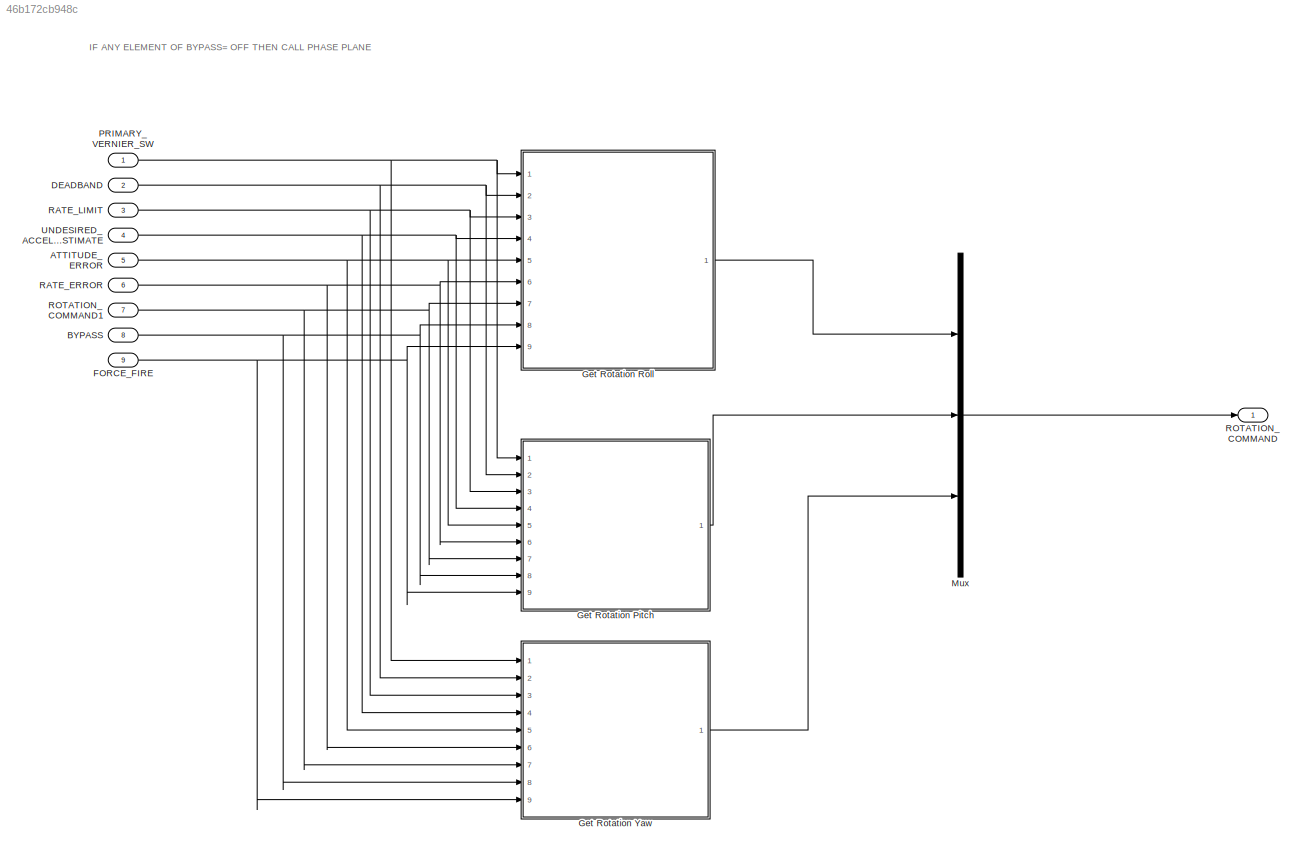
MODEL slx_46b172cb948c
KIND model
CONFIG AbsTol = auto
CONFIG EnableMultiTasking = off
CONFIG FixedStep = 0.08
CONFIG MaxStep = auto
CONFIG MinStep = auto
CONFIG RelTol = 1e-3
CONFIG SampleTimeConstraint = Unconstrained
CONFIG Solver = FixedStepAuto
CONFIG SolverName = FixedStepAuto
CONFIG StartTime = 0.0
CONFIG StopTime = 10.0
BLOCK [Inport] ATTITUDE_ERROR
  IconDisplay = Port number
  Port = 5
BLOCK [Inport] BYPASS
  IconDisplay = Port number
  OutDataTypeStr = boolean
  Port = 8
  PortDimensions = 3
BLOCK [Inport] DEADBAND
  IconDisplay = Port number
  Port = 2
BLOCK [Inport] FORCE_FIRE
  IconDisplay = Port number
  OutDataTypeStr = boolean
  Port = 9
  PortDimensions = 3
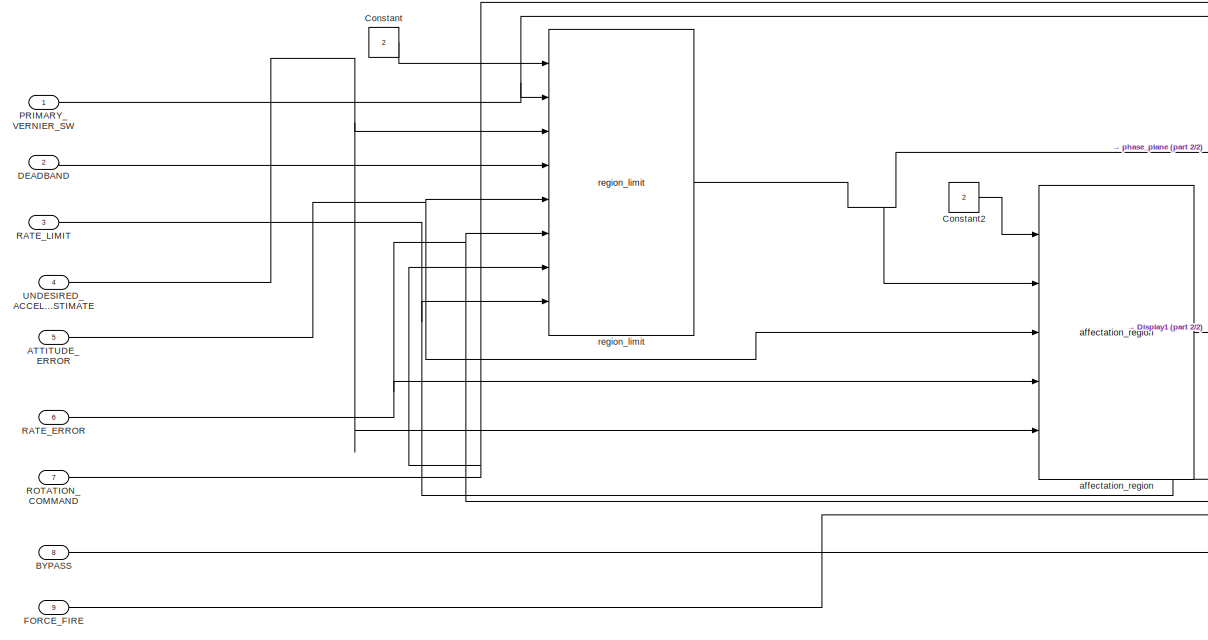
[diagram: Get Rotation Pitch - part 1/2, left side, full height]
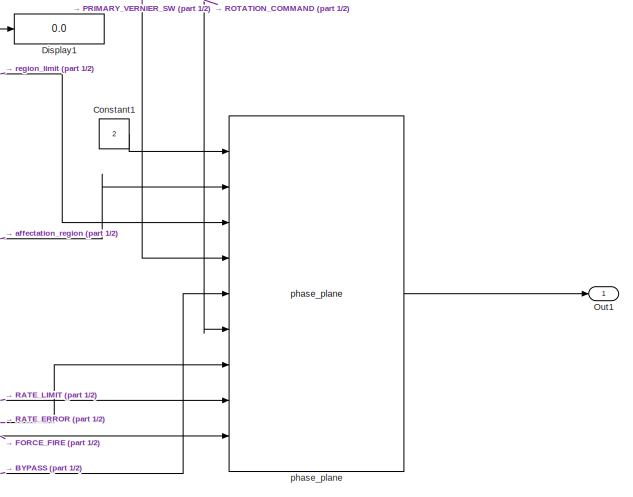
[diagram: Get Rotation Pitch - part 2/2, middle right region]
BLOCK [SubSystem] Get Rotation Pitch
  Ports = [9, 1]
  RequestExecContextInheritance = off
  Variant = off
BLOCK [Inport] Get Rotation Pitch/ATTITUDE_ERROR
  IconDisplay = Port number
  Port = 5
BLOCK [Inport] Get Rotation Pitch/BYPASS
  IconDisplay = Port number
  Port = 8
BLOCK [Constant] Get Rotation Pitch/Constant
  Value = 2
BLOCK [Constant] Get Rotation Pitch/Constant1
  Value = 2
BLOCK [Constant] Get Rotation Pitch/Constant2
  Value = 2
BLOCK [Inport] Get Rotation Pitch/DEADBAND
  IconDisplay = Port number
  Port = 2
BLOCK [Display] Get Rotation Pitch/Display1
  Decimation = 1
  Ports = [1]
BLOCK [Inport] Get Rotation Pitch/FORCE_FIRE
  IconDisplay = Port number
  Port = 9
BLOCK [Outport] Get Rotation Pitch/Out1
  IconDisplay = Port number
BLOCK [Inport] Get Rotation Pitch/PRIMARY_VERNIER_SW
  IconDisplay = Port number
BLOCK [Inport] Get Rotation Pitch/RATE_ERROR
  IconDisplay = Port number
  Port = 6
BLOCK [Inport] Get Rotation Pitch/RATE_LIMIT
  IconDisplay = Port number
  Port = 3
BLOCK [Inport] Get Rotation Pitch/ROTATION_COMMAND
  IconDisplay = Port number
  Port = 7
BLOCK [Inport] Get Rotation Pitch/UNDESIRED_ACCELERATION_ESTIMATE
  IconDisplay = Port number
  Port = 4
BLOCK [Reference] Get Rotation Pitch/affectation_region  REF=MATLAB_Function_lib/affectation_region
  Ports = [5, 1]
  SourceBlock = MATLAB_Function_lib/affectation_region
  SourceType = SubSystem
BLOCK [Reference] Get Rotation Pitch/phase_plane  REF=MATLAB_Function_lib/phase_plane
  Ports = [9, 1]
  SourceBlock = MATLAB_Function_lib/phase_plane
  SourceType = SubSystem
BLOCK [Reference] Get Rotation Pitch/region_limit  REF=MATLAB_Function_lib/region_limit
  Ports = [8, 1]
  SourceBlock = MATLAB_Function_lib/region_limit
  SourceType = SubSystem
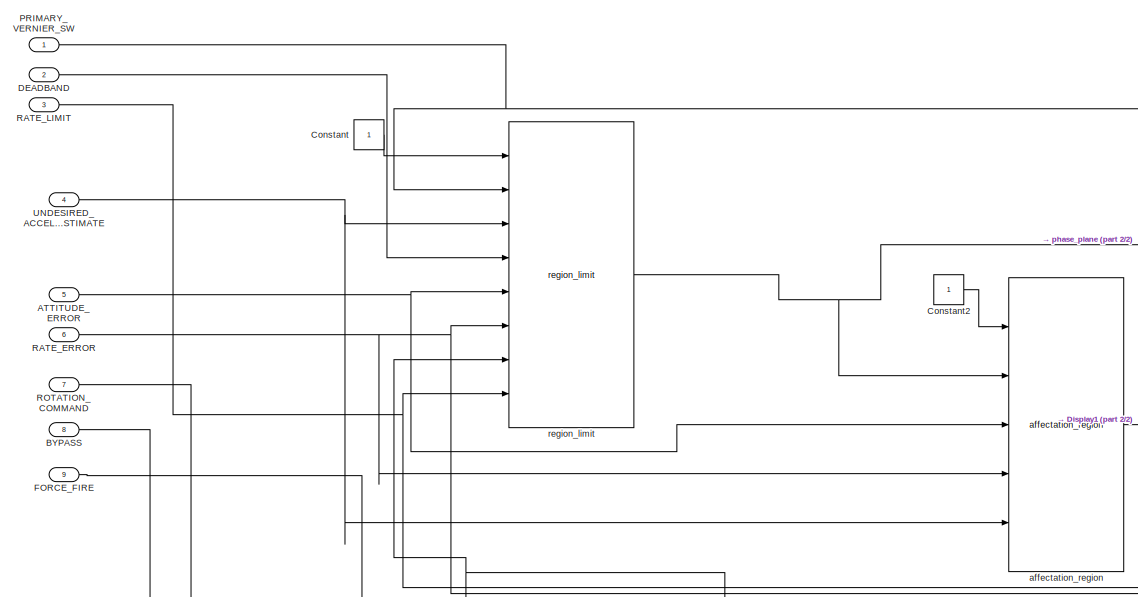
[diagram: Get Rotation Roll - part 1/2, middle left region]
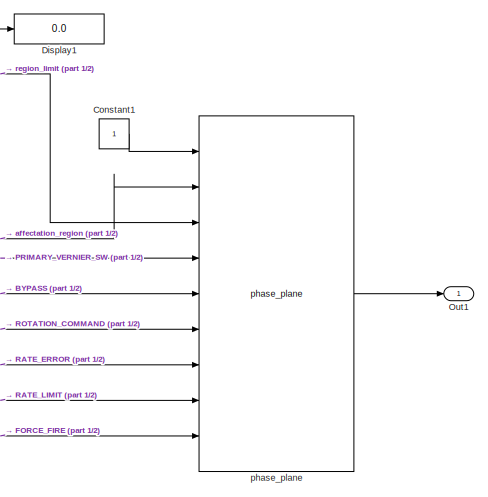
[diagram: Get Rotation Roll - part 2/2, middle right region]
BLOCK [SubSystem] Get Rotation Roll
  Ports = [9, 1]
  RequestExecContextInheritance = off
  Variant = off
BLOCK [Inport] Get Rotation Roll/ATTITUDE_ERROR
  IconDisplay = Port number
  Port = 5
BLOCK [Inport] Get Rotation Roll/BYPASS
  IconDisplay = Port number
  Port = 8
BLOCK [Constant] Get Rotation Roll/Constant
BLOCK [Constant] Get Rotation Roll/Constant1
BLOCK [Constant] Get Rotation Roll/Constant2
BLOCK [Inport] Get Rotation Roll/DEADBAND
  IconDisplay = Port number
  Port = 2
BLOCK [Display] Get Rotation Roll/Display1
  Decimation = 1
  Ports = [1]
BLOCK [Inport] Get Rotation Roll/FORCE_FIRE
  IconDisplay = Port number
  Port = 9
BLOCK [Outport] Get Rotation Roll/Out1
  IconDisplay = Port number
BLOCK [Inport] Get Rotation Roll/PRIMARY_VERNIER_SW
  IconDisplay = Port number
BLOCK [Inport] Get Rotation Roll/RATE_ERROR
  IconDisplay = Port number
  Port = 6
BLOCK [Inport] Get Rotation Roll/RATE_LIMIT
  IconDisplay = Port number
  Port = 3
BLOCK [Inport] Get Rotation Roll/ROTATION_COMMAND
  IconDisplay = Port number
  Port = 7
BLOCK [Inport] Get Rotation Roll/UNDESIRED_ACCELERATION_ESTIMATE
  IconDisplay = Port number
  Port = 4
BLOCK [Reference] Get Rotation Roll/affectation_region  REF=MATLAB_Function_lib/affectation_region
  Ports = [5, 1]
  SourceBlock = MATLAB_Function_lib/affectation_region
  SourceType = SubSystem
BLOCK [Reference] Get Rotation Roll/phase_plane  REF=MATLAB_Function_lib/phase_plane
  Ports = [9, 1]
  SourceBlock = MATLAB_Function_lib/phase_plane
  SourceType = SubSystem
BLOCK [Reference] Get Rotation Roll/region_limit  REF=MATLAB_Function_lib/region_limit
  Ports = [8, 1]
  SourceBlock = MATLAB_Function_lib/region_limit
  SourceType = SubSystem
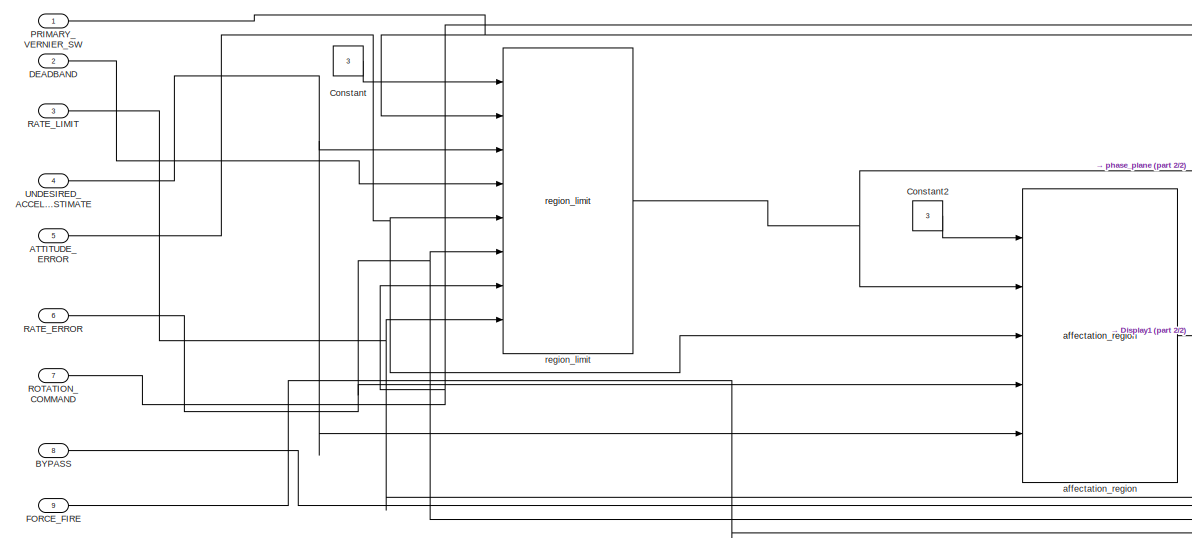
[diagram: Get Rotation Yaw - part 1/2, left side, full height]
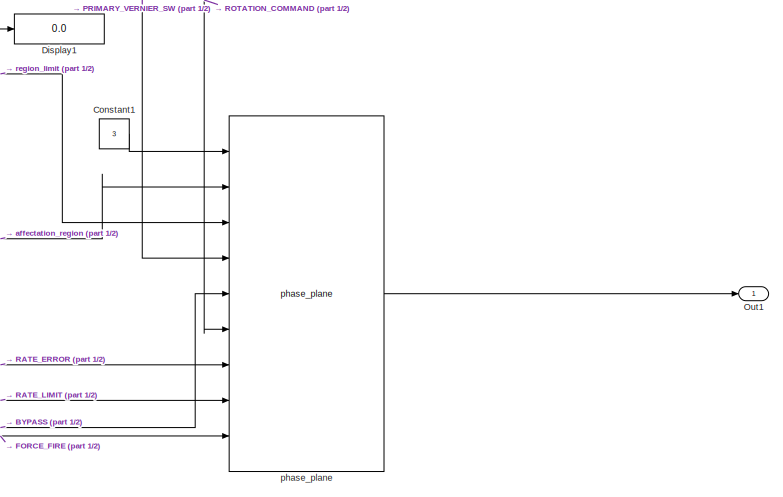
[diagram: Get Rotation Yaw - part 2/2, right side, full height]
BLOCK [SubSystem] Get Rotation Yaw
  Ports = [9, 1]
  RequestExecContextInheritance = off
  Variant = off
BLOCK [Inport] Get Rotation Yaw/ATTITUDE_ERROR
  IconDisplay = Port number
  Port = 5
BLOCK [Inport] Get Rotation Yaw/BYPASS
  IconDisplay = Port number
  Port = 8
BLOCK [Constant] Get Rotation Yaw/Constant
  Value = 3
BLOCK [Constant] Get Rotation Yaw/Constant1
  Value = 3
BLOCK [Constant] Get Rotation Yaw/Constant2
  Value = 3
BLOCK [Inport] Get Rotation Yaw/DEADBAND
  IconDisplay = Port number
  Port = 2
BLOCK [Display] Get Rotation Yaw/Display1
  Decimation = 1
  Ports = [1]
BLOCK [Inport] Get Rotation Yaw/FORCE_FIRE
  IconDisplay = Port number
  Port = 9
BLOCK [Outport] Get Rotation Yaw/Out1
  IconDisplay = Port number
BLOCK [Inport] Get Rotation Yaw/PRIMARY_VERNIER_SW
  IconDisplay = Port number
BLOCK [Inport] Get Rotation Yaw/RATE_ERROR
  IconDisplay = Port number
  Port = 6
BLOCK [Inport] Get Rotation Yaw/RATE_LIMIT
  IconDisplay = Port number
  Port = 3
BLOCK [Inport] Get Rotation Yaw/ROTATION_COMMAND
  IconDisplay = Port number
  Port = 7
BLOCK [Inport] Get Rotation Yaw/UNDESIRED_ACCELERATION_ESTIMATE
  IconDisplay = Port number
  Port = 4
BLOCK [Reference] Get Rotation Yaw/affectation_region  REF=MATLAB_Function_lib/affectation_region
  Ports = [5, 1]
  SourceBlock = MATLAB_Function_lib/affectation_region
  SourceType = SubSystem
BLOCK [Reference] Get Rotation Yaw/phase_plane  REF=MATLAB_Function_lib/phase_plane
  Ports = [9, 1]
  SourceBlock = MATLAB_Function_lib/phase_plane
  SourceType = SubSystem
BLOCK [Reference] Get Rotation Yaw/region_limit  REF=MATLAB_Function_lib/region_limit
  Ports = [8, 1]
  SourceBlock = MATLAB_Function_lib/region_limit
  SourceType = SubSystem
BLOCK [Mux] Mux
  DisplayOption = bar
  Inputs = 3
  Ports = [3, 1]
BLOCK [Inport] PRIMARY_VERNIER_SW
  IconDisplay = Port number
  OutDataTypeStr = boolean
BLOCK [Inport] RATE_ERROR
  IconDisplay = Port number
  Port = 6
BLOCK [Inport] RATE_LIMIT
  IconDisplay = Port number
  Port = 3
BLOCK [Outport] ROTATION_COMMAND
  IconDisplay = Port number
BLOCK [Inport] ROTATION_COMMAND1
  IconDisplay = Port number
  Port = 7
BLOCK [Inport] UNDESIRED_ACCELERATION_ESTIMATE
  IconDisplay = Port number
  Port = 4
ANNOTATION (root): IF ANY ELEMENT OF BYPASS= OFF THEN CALL PHASE PLANE
NET ATTITUDE_ERROR:1 -> Get Rotation Pitch:5, Get Rotation Roll:5, Get Rotation Yaw:5
NET BYPASS:1 -> Get Rotation Pitch:8, Get Rotation Roll:8, Get Rotation Yaw:8
NET DEADBAND:1 -> Get Rotation Pitch:2, Get Rotation Roll:2, Get Rotation Yaw:2
NET FORCE_FIRE:1 -> Get Rotation Pitch:9, Get Rotation Roll:9, Get Rotation Yaw:9
NET Get Rotation Pitch/ATTITUDE_ERROR:1 -> Get Rotation Pitch/affectation_region:3, Get Rotation Pitch/region_limit:5
LINE Get Rotation Pitch/BYPASS:1 -> Get Rotation Pitch/phase_plane:5
LINE Get Rotation Pitch/Constant1:1 -> Get Rotation Pitch/phase_plane:1
LINE Get Rotation Pitch/Constant2:1 -> Get Rotation Pitch/affectation_region:1
LINE Get Rotation Pitch/Constant:1 -> Get Rotation Pitch/region_limit:1
LINE Get Rotation Pitch/DEADBAND:1 -> Get Rotation Pitch/region_limit:4
LINE Get Rotation Pitch/FORCE_FIRE:1 -> Get Rotation Pitch/phase_plane:9
NET Get Rotation Pitch/PRIMARY_VERNIER_SW:1 -> Get Rotation Pitch/phase_plane:4, Get Rotation Pitch/region_limit:2
NET Get Rotation Pitch/RATE_ERROR:1 -> Get Rotation Pitch/affectation_region:4, Get Rotation Pitch/phase_plane:7, Get Rotation Pitch/region_limit:6
NET Get Rotation Pitch/RATE_LIMIT:1 -> Get Rotation Pitch/phase_plane:8, Get Rotation Pitch/region_limit:8
NET Get Rotation Pitch/ROTATION_COMMAND:1 -> Get Rotation Pitch/phase_plane:6, Get Rotation Pitch/region_limit:7
NET Get Rotation Pitch/UNDESIRED_ACCELERATION_ESTIMATE:1 -> Get Rotation Pitch/affectation_region:5, Get Rotation Pitch/region_limit:3
NET Get Rotation Pitch/affectation_region:1 -> Get Rotation Pitch/Display1:1, Get Rotation Pitch/phase_plane:2
LINE Get Rotation Pitch/phase_plane:1 -> Get Rotation Pitch/Out1:1
NET Get Rotation Pitch/region_limit:1 -> Get Rotation Pitch/affectation_region:2, Get Rotation Pitch/phase_plane:3
LINE Get Rotation Pitch:1 -> Mux:2
NET Get Rotation Roll/ATTITUDE_ERROR:1 -> Get Rotation Roll/affectation_region:3, Get Rotation Roll/region_limit:5
LINE Get Rotation Roll/BYPASS:1 -> Get Rotation Roll/phase_plane:5
LINE Get Rotation Roll/Constant1:1 -> Get Rotation Roll/phase_plane:1
LINE Get Rotation Roll/Constant2:1 -> Get Rotation Roll/affectation_region:1
LINE Get Rotation Roll/Constant:1 -> Get Rotation Roll/region_limit:1
LINE Get Rotation Roll/DEADBAND:1 -> Get Rotation Roll/region_limit:4
LINE Get Rotation Roll/FORCE_FIRE:1 -> Get Rotation Roll/phase_plane:9
NET Get Rotation Roll/PRIMARY_VERNIER_SW:1 -> Get Rotation Roll/phase_plane:4, Get Rotation Roll/region_limit:2
NET Get Rotation Roll/RATE_ERROR:1 -> Get Rotation Roll/affectation_region:4, Get Rotation Roll/phase_plane:7, Get Rotation Roll/region_limit:6
NET Get Rotation Roll/RATE_LIMIT:1 -> Get Rotation Roll/phase_plane:8, Get Rotation Roll/region_limit:8
NET Get Rotation Roll/ROTATION_COMMAND:1 -> Get Rotation Roll/phase_plane:6, Get Rotation Roll/region_limit:7
NET Get Rotation Roll/UNDESIRED_ACCELERATION_ESTIMATE:1 -> Get Rotation Roll/affectation_region:5, Get Rotation Roll/region_limit:3
NET Get Rotation Roll/affectation_region:1 -> Get Rotation Roll/Display1:1, Get Rotation Roll/phase_plane:2
LINE Get Rotation Roll/phase_plane:1 -> Get Rotation Roll/Out1:1
NET Get Rotation Roll/region_limit:1 -> Get Rotation Roll/affectation_region:2, Get Rotation Roll/phase_plane:3
LINE Get Rotation Roll:1 -> Mux:1
NET Get Rotation Yaw/ATTITUDE_ERROR:1 -> Get Rotation Yaw/affectation_region:3, Get Rotation Yaw/region_limit:5
LINE Get Rotation Yaw/BYPASS:1 -> Get Rotation Yaw/phase_plane:5
LINE Get Rotation Yaw/Constant1:1 -> Get Rotation Yaw/phase_plane:1
LINE Get Rotation Yaw/Constant2:1 -> Get Rotation Yaw/affectation_region:1
LINE Get Rotation Yaw/Constant:1 -> Get Rotation Yaw/region_limit:1
LINE Get Rotation Yaw/DEADBAND:1 -> Get Rotation Yaw/region_limit:4
LINE Get Rotation Yaw/FORCE_FIRE:1 -> Get Rotation Yaw/phase_plane:9
NET Get Rotation Yaw/PRIMARY_VERNIER_SW:1 -> Get Rotation Yaw/phase_plane:4, Get Rotation Yaw/region_limit:2
NET Get Rotation Yaw/RATE_ERROR:1 -> Get Rotation Yaw/affectation_region:4, Get Rotation Yaw/phase_plane:7, Get Rotation Yaw/region_limit:6
NET Get Rotation Yaw/RATE_LIMIT:1 -> Get Rotation Yaw/phase_plane:8, Get Rotation Yaw/region_limit:8
NET Get Rotation Yaw/ROTATION_COMMAND:1 -> Get Rotation Yaw/phase_plane:6, Get Rotation Yaw/region_limit:7
NET Get Rotation Yaw/UNDESIRED_ACCELERATION_ESTIMATE:1 -> Get Rotation Yaw/affectation_region:5, Get Rotation Yaw/region_limit:3
NET Get Rotation Yaw/affectation_region:1 -> Get Rotation Yaw/Display1:1, Get Rotation Yaw/phase_plane:2
LINE Get Rotation Yaw/phase_plane:1 -> Get Rotation Yaw/Out1:1
NET Get Rotation Yaw/region_limit:1 -> Get Rotation Yaw/affectation_region:2, Get Rotation Yaw/phase_plane:3
LINE Get Rotation Yaw:1 -> Mux:3
LINE Mux:1 -> ROTATION_COMMAND:1
NET PRIMARY_VERNIER_SW:1 -> Get Rotation Pitch:1, Get Rotation Roll:1, Get Rotation Yaw:1
NET RATE_ERROR:1 -> Get Rotation Pitch:6, Get Rotation Roll:6, Get Rotation Yaw:6
NET RATE_LIMIT:1 -> Get Rotation Pitch:3, Get Rotation Roll:3, Get Rotation Yaw:3
NET ROTATION_COMMAND1:1 -> Get Rotation Pitch:7, Get Rotation Roll:7, Get Rotation Yaw:7
NET UNDESIRED_ACCELERATION_ESTIMATE:1 -> Get Rotation Pitch:4, Get Rotation Roll:4, Get Rotation Yaw:4
note: NET lines group one-source signal fan-out (src -> all destinations, sorted); 1:1 wires keep LINE
